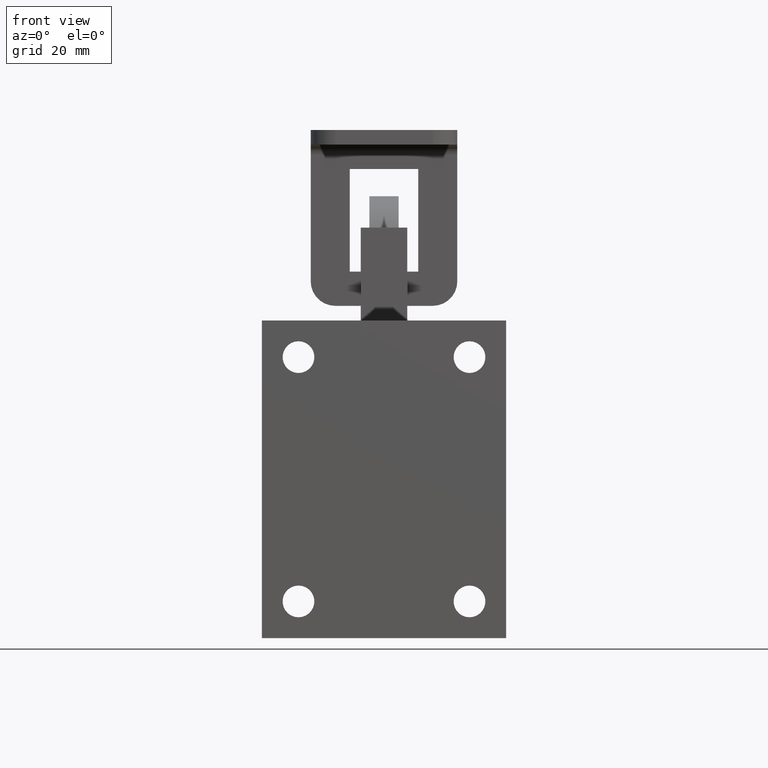
[diagram: clean part render]
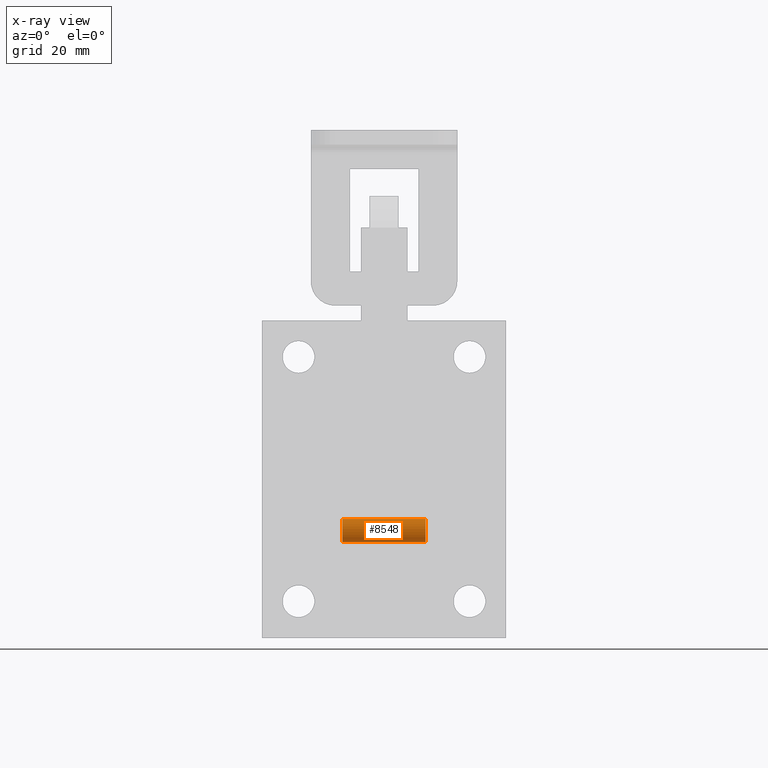
[diagram: x-ray — body ghosted, one internal face saturated and labeled with its STEP entity id]
A machine part, front view, then the same camera in x-ray: the body is ghosted and one INTERNAL B-rep face — a face not visible from any outside direction — is saturated and labeled: STEP entity #8548.
In plain terms, the highlighted cylindrical surface (bore or boss wall) has radius 2.375 mm, axis along (-1, -0, -0).
Its self-contained STEP definition (entity closure, byte-faithful):
#640 = DIRECTION ( 'NONE',  ( -1.000000000000000000, 0.0000000000000000000, 0.0000000000000000000 ) ) ;
#1111 = DIRECTION ( 'NONE',  ( 0.0000000000000000000, 0.0000000000000000000, 1.000000000000000000 ) ) ;
#1223 = CIRCLE ( 'NONE', #11924, 2.375000000000000000 ) ;
#1384 = DIRECTION ( 'NONE',  ( 0.0000000000000000000, 0.0000000000000000000, 1.000000000000000000 ) ) ;
#1533 = CARTESIAN_POINT ( 'NONE',  ( 8.500000000000000000, 0.0000000000000000000, 2.375000000000000000 ) ) ;
#1592 = CARTESIAN_POINT ( 'NONE',  ( -8.500000000000000000, 0.0000000000000000000, 0.0000000000000000000 ) ) ;
#1840 = AXIS2_PLACEMENT_3D ( 'NONE', #1592, #640, #4673 ) ;
#2598 = CIRCLE ( 'NONE', #1840, 2.375000000000000000 ) ;
#2873 = EDGE_LOOP ( 'NONE', ( #12688 ) ) ;
#2883 = AXIS2_PLACEMENT_3D ( 'NONE', #4852, #6912, #1111 ) ;
#2903 = CYLINDRICAL_SURFACE ( 'NONE', #2883, 2.375000000000000000 ) ;
#3267 = CARTESIAN_POINT ( 'NONE',  ( 8.500000000000000000, 0.0000000000000000000, 0.0000000000000000000 ) ) ;
#4673 = DIRECTION ( 'NONE',  ( 0.0000000000000000000, 0.0000000000000000000, 1.000000000000000000 ) ) ;
#4852 = CARTESIAN_POINT ( 'NONE',  ( 0.0000000000000000000, 0.0000000000000000000, 0.0000000000000000000 ) ) ;
#5501 = EDGE_LOOP ( 'NONE', ( #10365 ) ) ;
#6052 = VERTEX_POINT ( 'NONE', #1533 ) ;
#6853 = VERTEX_POINT ( 'NONE', #9587 ) ;
#6912 = DIRECTION ( 'NONE',  ( -1.000000000000000000, -0.0000000000000000000, -0.0000000000000000000 ) ) ;
#8091 = EDGE_CURVE ( 'NONE', #6853, #6853, #2598, .T. ) ;
#8548 = ADVANCED_FACE ( 'NONE', ( #13087, #11987 ), #2903, .T. ) ;
#9587 = CARTESIAN_POINT ( 'NONE',  ( -8.500000000000000000, 0.0000000000000000000, 2.375000000000000000 ) ) ;
#10365 = ORIENTED_EDGE ( 'NONE', *, *, #8091, .F. ) ;
#10708 = EDGE_CURVE ( 'NONE', #6052, #6052, #1223, .T. ) ;
#11924 = AXIS2_PLACEMENT_3D ( 'NONE', #3267, #12426, #1384 ) ;
#11987 = FACE_OUTER_BOUND ( 'NONE', #5501, .T. ) ;
#12426 = DIRECTION ( 'NONE',  ( -1.000000000000000000, -0.0000000000000000000, -0.0000000000000000000 ) ) ;
#12688 = ORIENTED_EDGE ( 'NONE', *, *, #10708, .T. ) ;
#13087 = FACE_OUTER_BOUND ( 'NONE', #2873, .T. ) ;